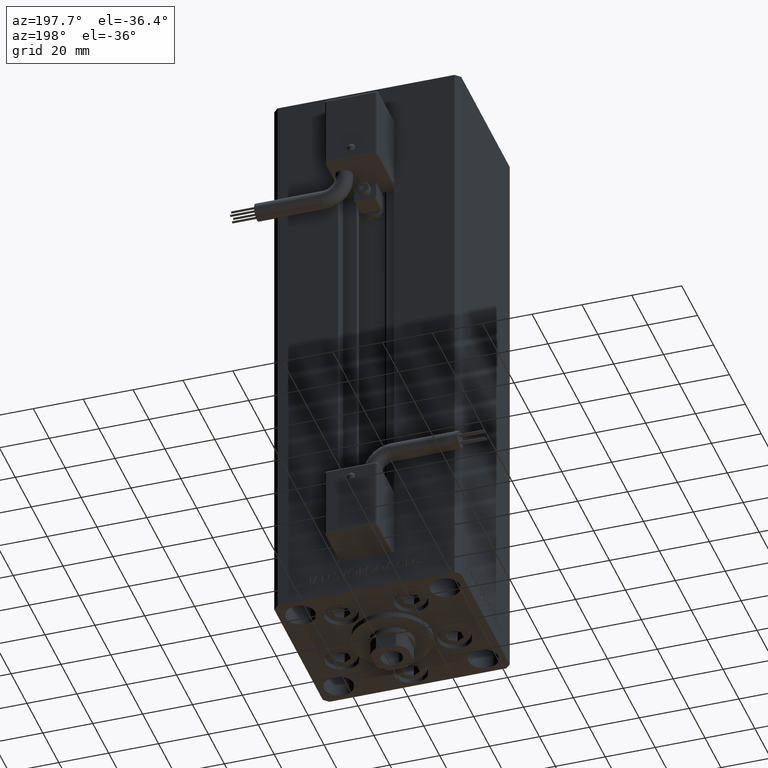
[diagram: clean part render]
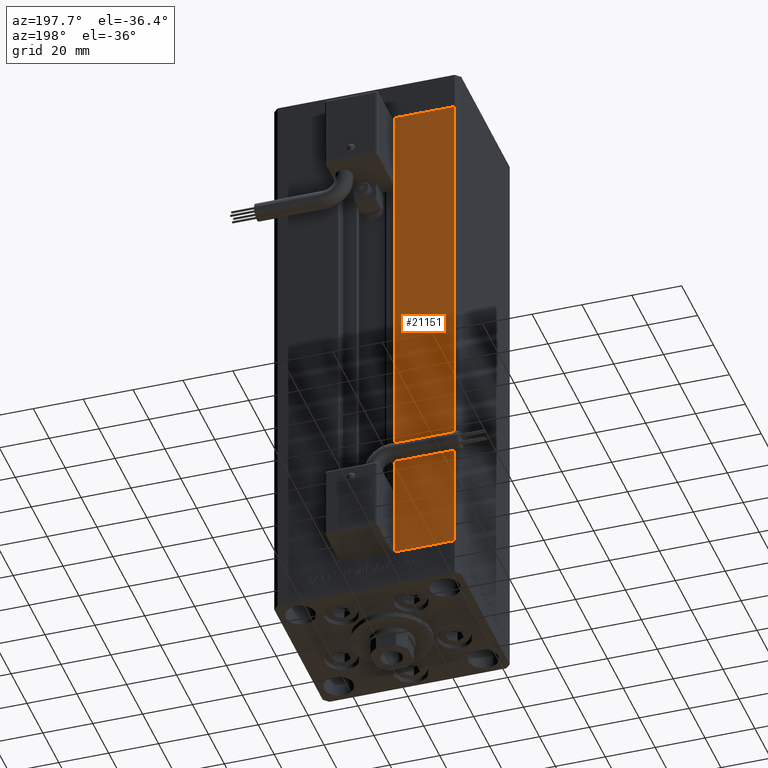
[diagram: same view with one face highlighted and labeled with its STEP entity id]
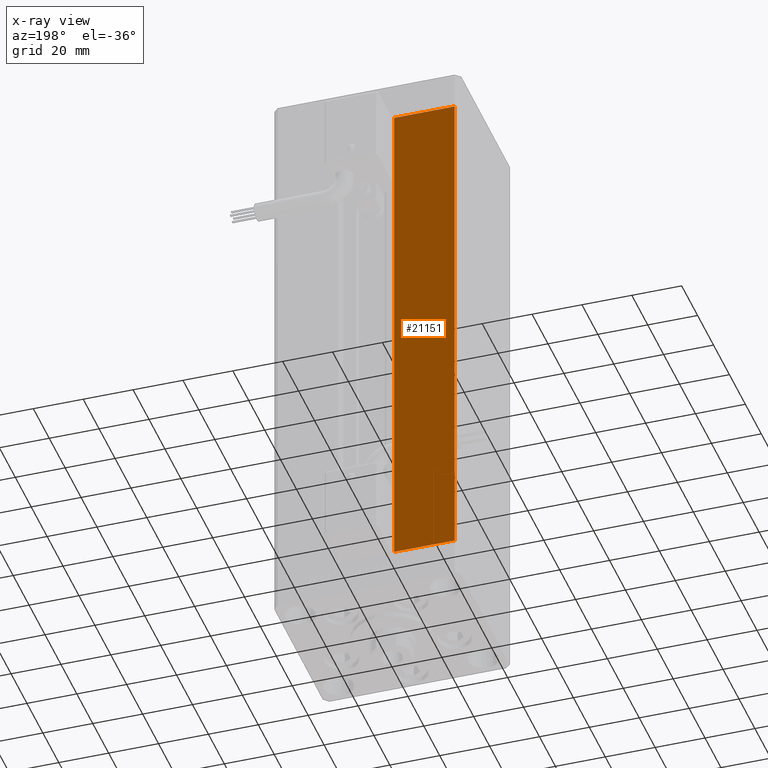
[diagram: x-ray of the same camera — body ghosted, the highlighted face saturated]
A machine part, auxiliary view. The second image highlights one B-rep face of the part: STEP entity #21151.
The next image is the same camera in x-ray: the body ghosted, the highlighted face saturated — about 0% of this face is hidden behind the body in this view.
In plain terms, the highlighted planar face has unit normal (0, -1, 0).
Its self-contained STEP definition (entity closure, byte-faithful):
#1092 = DIRECTION ( 'NONE',  ( 1.000000000000000000, 0.000000000000000000, 0.000000000000000000 ) ) ;
#3579 = DIRECTION ( 'NONE',  ( -1.000000000000000000, 0.000000000000000000, 0.000000000000000000 ) ) ;
#4085 = DIRECTION ( 'NONE',  ( 0.000000000000000000, -0.000000000000000000, -1.000000000000000000 ) ) ;
#7537 = VECTOR ( 'NONE', #1092, 1000.000000000000000 ) ;
#8824 = EDGE_CURVE ( 'NONE', #36652, #11995, #9730, .T. ) ;
#8839 = EDGE_CURVE ( 'NONE', #51320, #11995, #49921, .T. ) ;
#9463 = VECTOR ( 'NONE', #44526, 1000.000000000000000 ) ;
#9730 = LINE ( 'NONE', #16863, #11626 ) ;
#11008 = EDGE_LOOP ( 'NONE', ( #27826, #14625, #35395, #18028 ) ) ;
#11626 = VECTOR ( 'NONE', #33414, 1000.000000000000000 ) ;
#11680 = LINE ( 'NONE', #39798, #9463 ) ;
#11978 = PLANE ( 'NONE',  #12900 ) ;
#11995 = VERTEX_POINT ( 'NONE', #39214 ) ;
#12365 = VECTOR ( 'NONE', #3579, 1000.000000000000000 ) ;
#12900 = AXIS2_PLACEMENT_3D ( 'NONE', #28019, #44035, #4085 ) ;
#13933 = CARTESIAN_POINT ( 'NONE',  ( -11.25000000000000178, 32.49999999999999289, 206.0000000000000000 ) ) ;
#14625 = ORIENTED_EDGE ( 'NONE', *, *, #8824, .F. ) ;
#16433 = CARTESIAN_POINT ( 'NONE',  ( -11.25000000000000178, 32.49999999999999289, 0.000000000000000000 ) ) ;
#16863 = CARTESIAN_POINT ( 'NONE',  ( -11.25000000000000178, 32.49999999999999289, 0.000000000000000000 ) ) ;
#18028 = ORIENTED_EDGE ( 'NONE', *, *, #23524, .F. ) ;
#21151 = ADVANCED_FACE ( 'NONE', ( #47968 ), #11978, .F. ) ;
#23524 = EDGE_CURVE ( 'NONE', #51320, #24065, #11680, .T. ) ;
#24065 = VERTEX_POINT ( 'NONE', #45174 ) ;
#27826 = ORIENTED_EDGE ( 'NONE', *, *, #8839, .T. ) ;
#28019 = CARTESIAN_POINT ( 'NONE',  ( -11.25000000000000178, 32.49999999999999289, 206.0000000000000000 ) ) ;
#31153 = CARTESIAN_POINT ( 'NONE',  ( -35.50000000000000000, 32.49999999999999289, 206.0000000000000000 ) ) ;
#33414 = DIRECTION ( 'NONE',  ( -0.000000000000000000, -0.000000000000000000, 1.000000000000000000 ) ) ;
#35395 = ORIENTED_EDGE ( 'NONE', *, *, #43362, .T. ) ;
#36652 = VERTEX_POINT ( 'NONE', #41680 ) ;
#39214 = CARTESIAN_POINT ( 'NONE',  ( -11.25000000000000178, 32.49999999999999289, 206.0000000000000000 ) ) ;
#39798 = CARTESIAN_POINT ( 'NONE',  ( -35.50000000000000000, 32.49999999999999289, 206.0000000000000000 ) ) ;
#39835 = LINE ( 'NONE', #16433, #12365 ) ;
#41680 = CARTESIAN_POINT ( 'NONE',  ( -11.25000000000000178, 32.49999999999999289, 0.000000000000000000 ) ) ;
#43362 = EDGE_CURVE ( 'NONE', #36652, #24065, #39835, .T. ) ;
#44035 = DIRECTION ( 'NONE',  ( 0.000000000000000000, -1.000000000000000000, 0.000000000000000000 ) ) ;
#44526 = DIRECTION ( 'NONE',  ( -0.000000000000000000, -0.000000000000000000, -1.000000000000000000 ) ) ;
#45174 = CARTESIAN_POINT ( 'NONE',  ( -35.50000000000000000, 32.49999999999999289, 0.000000000000000000 ) ) ;
#47968 = FACE_OUTER_BOUND ( 'NONE', #11008, .T. ) ;
#49921 = LINE ( 'NONE', #13933, #7537 ) ;
#51320 = VERTEX_POINT ( 'NONE', #31153 ) ;